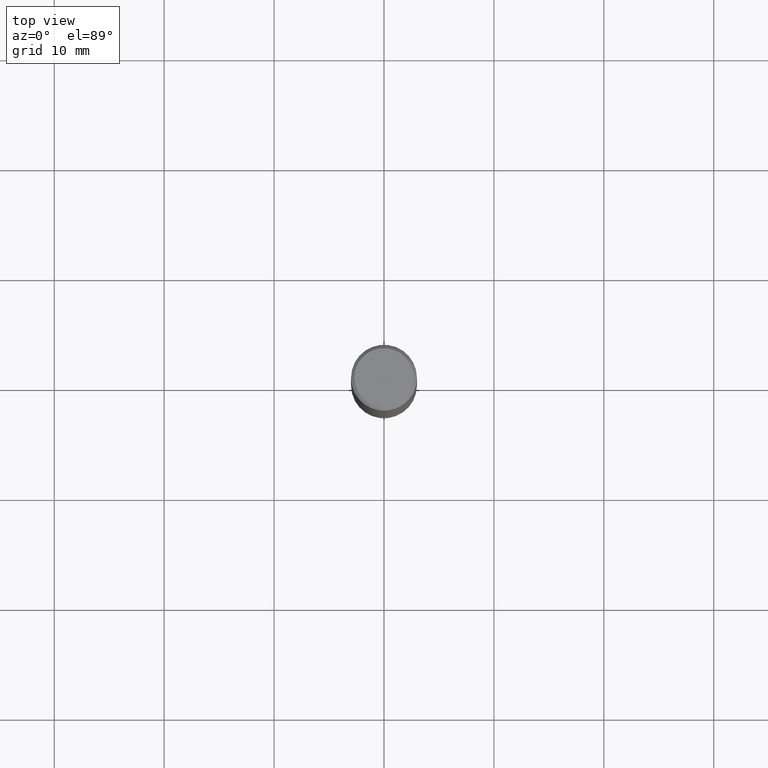
[diagram: clean part render]
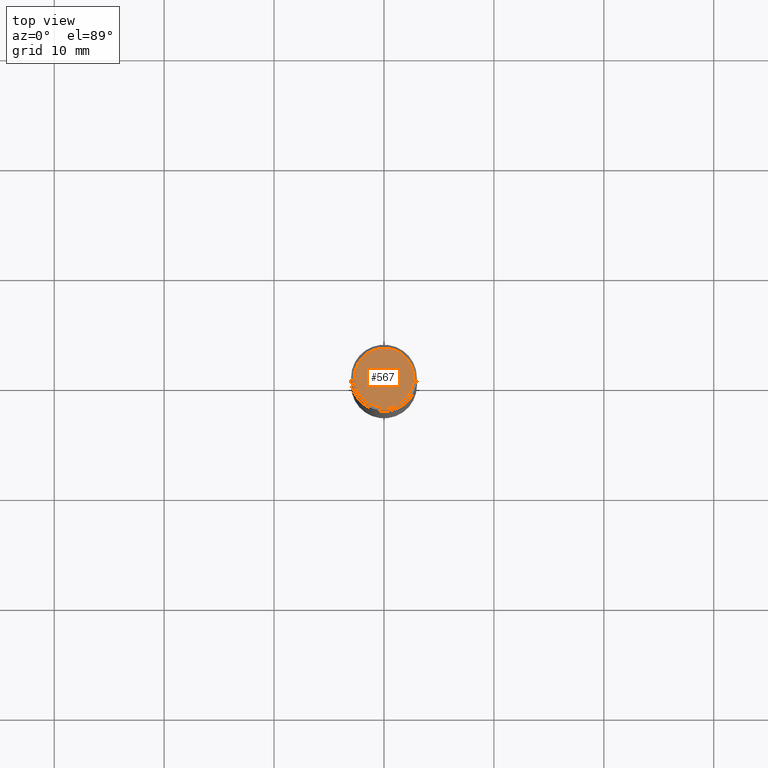
[diagram: same view with one face highlighted and labeled with its STEP entity id]
A machine part, top view. The second image highlights one B-rep face of the part: STEP entity #567.
In plain terms, the highlighted planar face has unit normal (0, -0, 1).
Its self-contained STEP definition (entity closure, byte-faithful):
#527 = VERTEX_POINT('', #528);
#528 = CARTESIAN_POINT('', (-2.7, 1.65327317884893E-16, 0.));
#534 = EDGE_CURVE('', #527, #527, #535, .T.);
#535 = CIRCLE('', #536, 2.7);
#536 = AXIS2_PLACEMENT_3D('', #537, #538, #539);
#537 = CARTESIAN_POINT('', (-2.18952885050753E-47, 1.25267077750159E-64, -7.44237865339621E-80));
#538 = DIRECTION('', (3.74939945665464E-33, 6.12323399573677E-17, -1.));
#539 = DIRECTION('', (-1., 6.12323399573677E-17, 0.));
#567 = ADVANCED_FACE('', (#568), #571, .T.);
#568 = FACE_OUTER_BOUND('', #569, .T.);
#569 = EDGE_LOOP('', (#570));
#570 = ORIENTED_EDGE('', *, *, #534, .F.);
#571 = PLANE('', #572);
#572 = AXIS2_PLACEMENT_3D('', #573, #574, #575);
#573 = CARTESIAN_POINT('', (4.20021428024809, -4.20021428024809, -1.13106398578357E-14));
#574 = DIRECTION('', (0., -2.69287210203181E-15, 1.));
#575 = DIRECTION('', (0., 1., 2.69287210203181E-15));